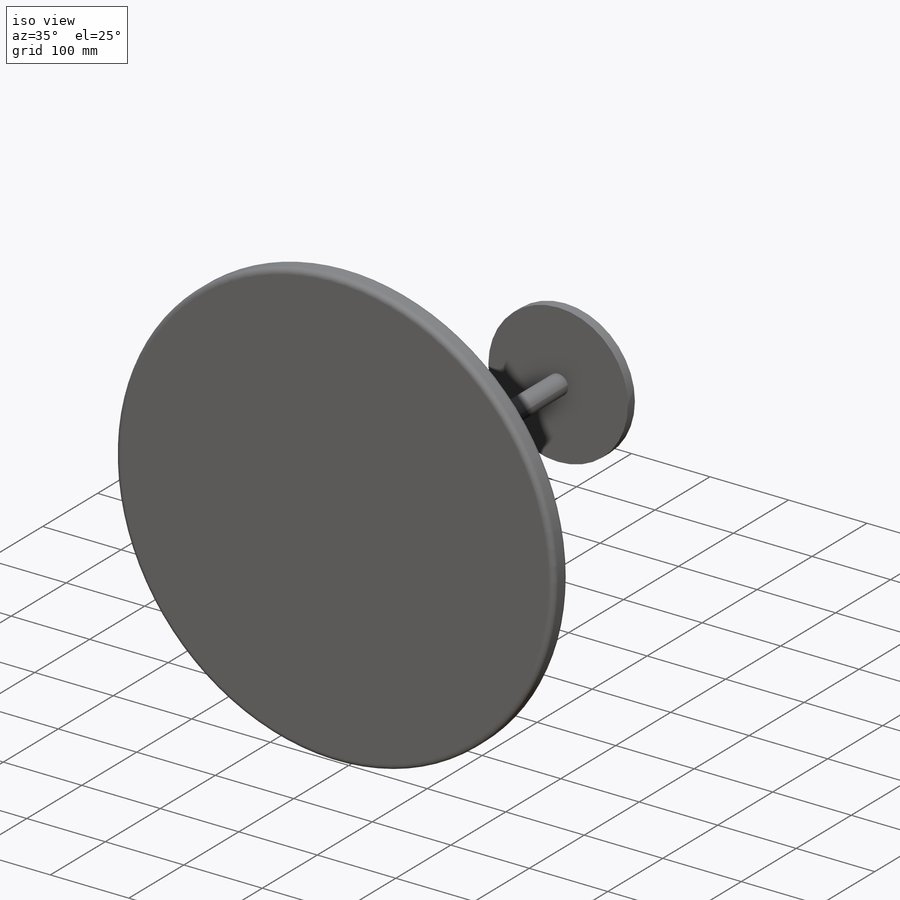
[diagram: iso view]
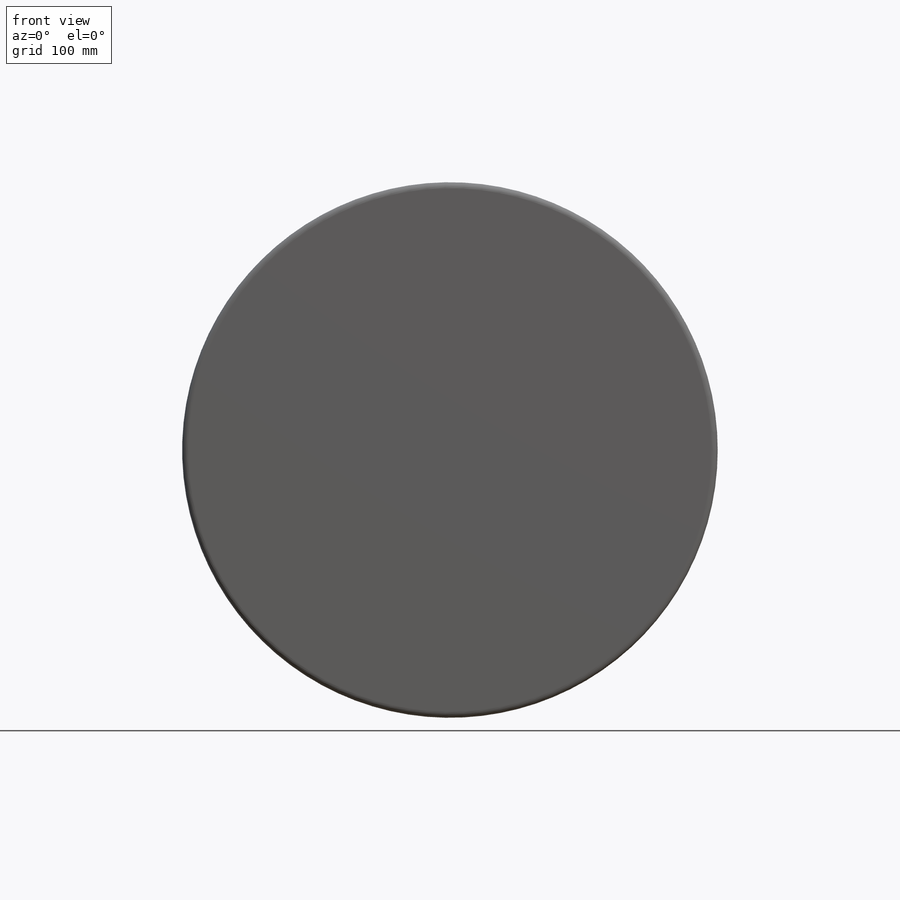
[diagram: front view]
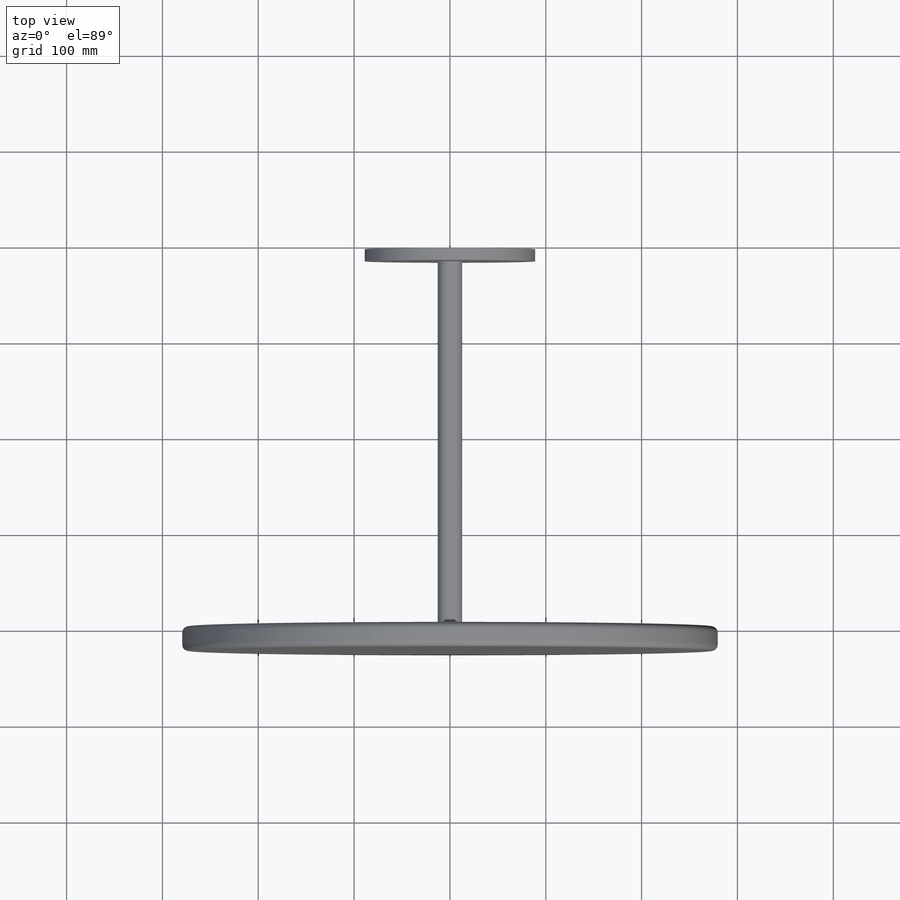
[diagram: top view]
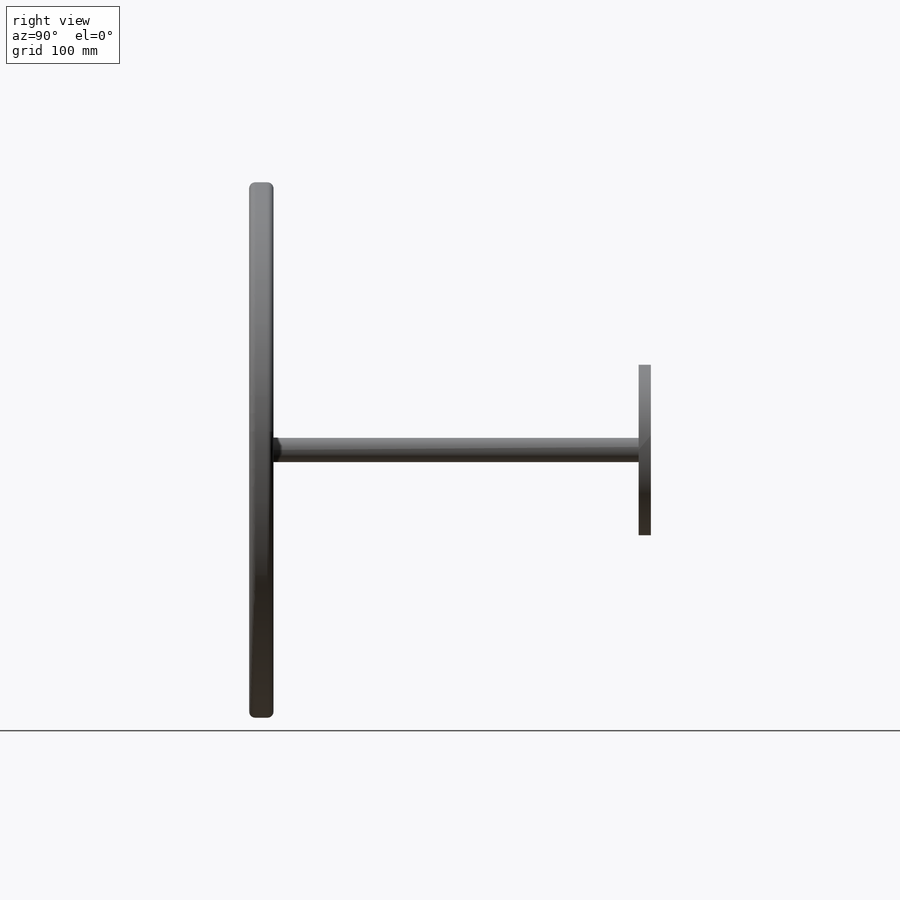
[diagram: right view]
SOLIDWORKS PART (.sldprt)
format: sldprt  version: not decoded by parser v0  size: 285,696 bytes
history: native  units: mm
features: extrude x10, plane x3, sketch x3, material x1, fillet x1 (+8 scaffold rows collapsed)
feature tree (26):
  scaffold x8  (default folders/planes/origin — collapsed)
  material  "Material <sin especificar>"
  plane  "Plane1"
  plane  "Plane2"
  plane  "Plane3"
  sketch  "Sketch1"  dims[D1=558.8mm]
  extrude  "Base-Extrude"  Depth=25.4mm
  sketch  "Sketch5"  dims[D1=25.4mm]
  extrude  "Boss-Extrude1"  [1 undecoded]
  extrude  "PW2_UID_val"  Depth=381mm
  fillet  "Fillet2"  [1 undecoded]
  extrude  "pw2 (6)"  [1 undecoded]
  extrude  "PW2_UID_val"  Depth=6.35mm
  extrude  "pw2 (1)"  [1 undecoded]
  extrude  "PW2_UID_val"  [1 undecoded]
  extrude  "pw2 (2)"  [1 undecoded]
  extrude  "PW2_UID_val"  [1 undecoded]
  sketch  "Croquis1"  dims[D1=177.8mm]
  extrude  "Saliente-Extruir1"  Depth=12.7mm
decode coverage: 7 of 14 modeling features carry decoded parameters
note: 7 parameter values undecoded
summary: no parameter record found for 7 features
note: suppression state not decoded; provenance and decode notes live in map.json
